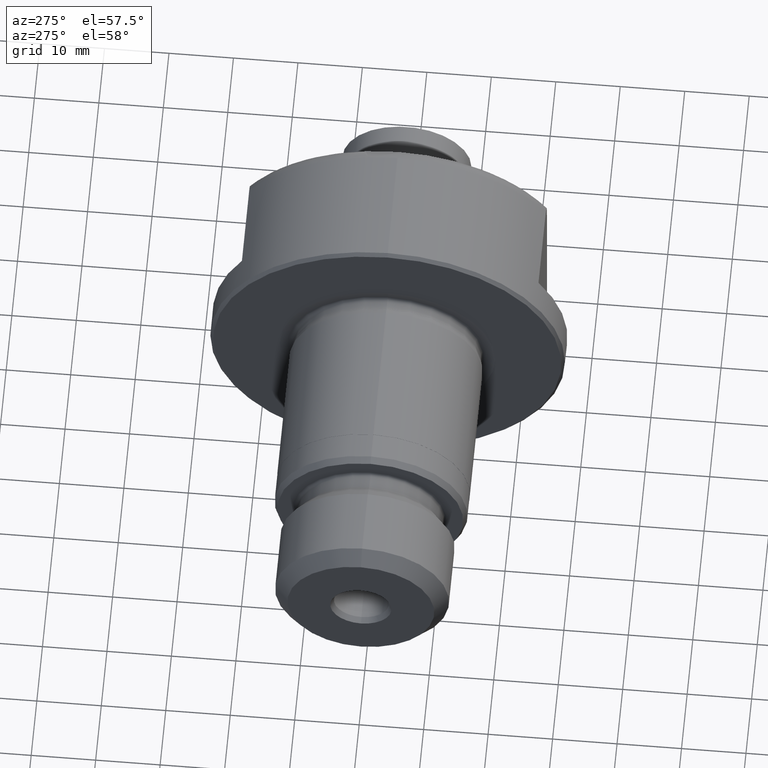
[diagram: clean part render]
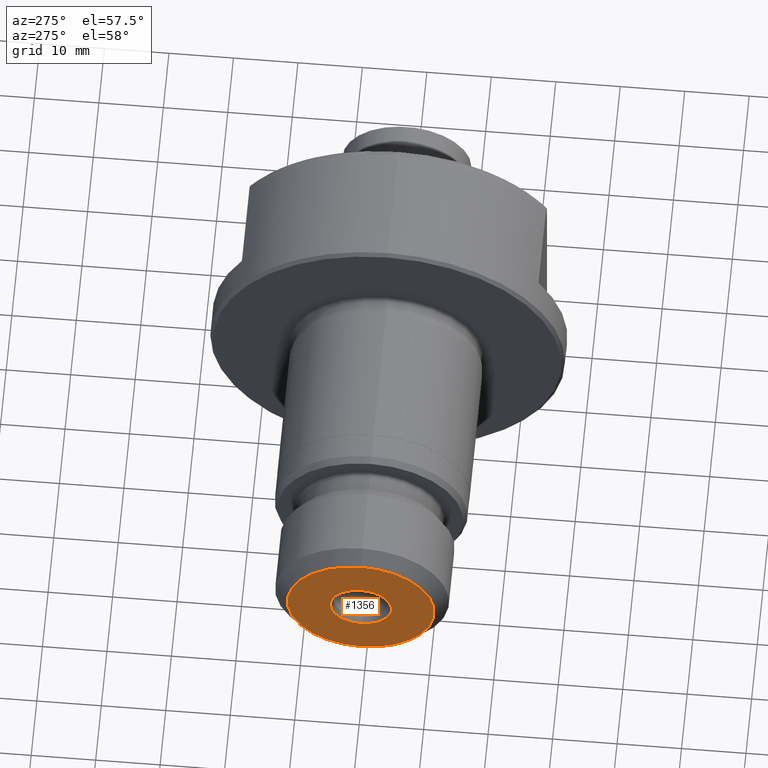
[diagram: same view with one face highlighted and labeled with its STEP entity id]
A machine part, auxiliary view. The second image highlights one B-rep face of the part: STEP entity #1356.
In plain terms, the highlighted planar face has unit normal (-1, 0, 0).
Its self-contained STEP definition (entity closure, byte-faithful):
#280 = FACE_BOUND ( 'NONE', #1511, .T. ) ;
#285 = FACE_OUTER_BOUND ( 'NONE', #1286, .T. ) ;
#325 = CIRCLE ( 'NONE', #1295, 11.39999999999999100 ) ;
#373 = CIRCLE ( 'NONE', #1194, 4.749999999999987600 ) ;
#627 = CIRCLE ( 'NONE', #1983, 4.749999999999987600 ) ;
#652 = CIRCLE ( 'NONE', #1959, 11.39999999999999100 ) ;
#678 = PLANE ( 'NONE',  #1081 ) ;
#735 = CARTESIAN_POINT ( 'NONE',  ( -47.00000000000000000, 0.0000000000000000000, 0.0000000000000000000 ) ) ;
#747 = DIRECTION ( 'NONE',  ( 1.000000000000000000, -0.0000000000000000000, -0.0000000000000000000 ) ) ;
#756 = DIRECTION ( 'NONE',  ( 0.0000000000000000000, 0.0000000000000000000, -1.000000000000000000 ) ) ;
#782 = CARTESIAN_POINT ( 'NONE',  ( -47.00000000000000000, 4.749999999999987600, 0.0000000000000000000 ) ) ;
#822 = DIRECTION ( 'NONE',  ( 0.0000000000000000000, 0.0000000000000000000, 1.000000000000000000 ) ) ;
#914 = CARTESIAN_POINT ( 'NONE',  ( -47.00000000000000000, 1.524685264938453700E-015, 11.39999999999999100 ) ) ;
#935 = CARTESIAN_POINT ( 'NONE',  ( -47.00000000000000000, 0.0000000000000000000, 0.0000000000000000000 ) ) ;
#940 = DIRECTION ( 'NONE',  ( 1.000000000000000000, -0.0000000000000000000, -0.0000000000000000000 ) ) ;
#946 = DIRECTION ( 'NONE',  ( 0.0000000000000000000, 0.0000000000000000000, -1.000000000000000000 ) ) ;
#992 = EDGE_CURVE ( 'NONE', #1670, #1043, #652, .T. ) ;
#1017 = EDGE_CURVE ( 'NONE', #2088, #1564, #627, .T. ) ;
#1043 = VERTEX_POINT ( 'NONE', #914 ) ;
#1081 = AXIS2_PLACEMENT_3D ( 'NONE', #782, #1967, #822 ) ;
#1194 = AXIS2_PLACEMENT_3D ( 'NONE', #1393, #1402, #1405 ) ;
#1261 = EDGE_CURVE ( 'NONE', #1564, #2088, #373, .T. ) ;
#1286 = EDGE_LOOP ( 'NONE', ( #2106, #2112 ) ) ;
#1291 = EDGE_CURVE ( 'NONE', #1043, #1670, #325, .T. ) ;
#1295 = AXIS2_PLACEMENT_3D ( 'NONE', #1780, #1796, #1820 ) ;
#1356 = ADVANCED_FACE ( 'NONE', ( #280, #285 ), #678, .T. ) ;
#1393 = CARTESIAN_POINT ( 'NONE',  ( -47.00000000000000000, 0.0000000000000000000, 0.0000000000000000000 ) ) ;
#1402 = DIRECTION ( 'NONE',  ( 1.000000000000000000, -0.0000000000000000000, -0.0000000000000000000 ) ) ;
#1405 = DIRECTION ( 'NONE',  ( 0.0000000000000000000, 0.0000000000000000000, -1.000000000000000000 ) ) ;
#1511 = EDGE_LOOP ( 'NONE', ( #2063, #2102 ) ) ;
#1564 = VERTEX_POINT ( 'NONE', #1944 ) ;
#1670 = VERTEX_POINT ( 'NONE', #1937 ) ;
#1780 = CARTESIAN_POINT ( 'NONE',  ( -47.00000000000000000, 0.0000000000000000000, 0.0000000000000000000 ) ) ;
#1786 = CARTESIAN_POINT ( 'NONE',  ( -47.00000000000000000, 0.0000000000000000000, 4.749999999999987600 ) ) ;
#1796 = DIRECTION ( 'NONE',  ( 1.000000000000000000, -0.0000000000000000000, -0.0000000000000000000 ) ) ;
#1820 = DIRECTION ( 'NONE',  ( 0.0000000000000000000, 0.0000000000000000000, -1.000000000000000000 ) ) ;
#1937 = CARTESIAN_POINT ( 'NONE',  ( -47.00000000000000000, 0.0000000000000000000, -11.39999999999999100 ) ) ;
#1944 = CARTESIAN_POINT ( 'NONE',  ( -47.00000000000000000, 5.817072295949912600E-016, -4.749999999999987600 ) ) ;
#1959 = AXIS2_PLACEMENT_3D ( 'NONE', #735, #747, #756 ) ;
#1967 = DIRECTION ( 'NONE',  ( -1.000000000000000000, 0.0000000000000000000, 0.0000000000000000000 ) ) ;
#1983 = AXIS2_PLACEMENT_3D ( 'NONE', #935, #940, #946 ) ;
#2063 = ORIENTED_EDGE ( 'NONE', *, *, #1017, .T. ) ;
#2088 = VERTEX_POINT ( 'NONE', #1786 ) ;
#2102 = ORIENTED_EDGE ( 'NONE', *, *, #1261, .T. ) ;
#2106 = ORIENTED_EDGE ( 'NONE', *, *, #992, .F. ) ;
#2112 = ORIENTED_EDGE ( 'NONE', *, *, #1291, .F. ) ;